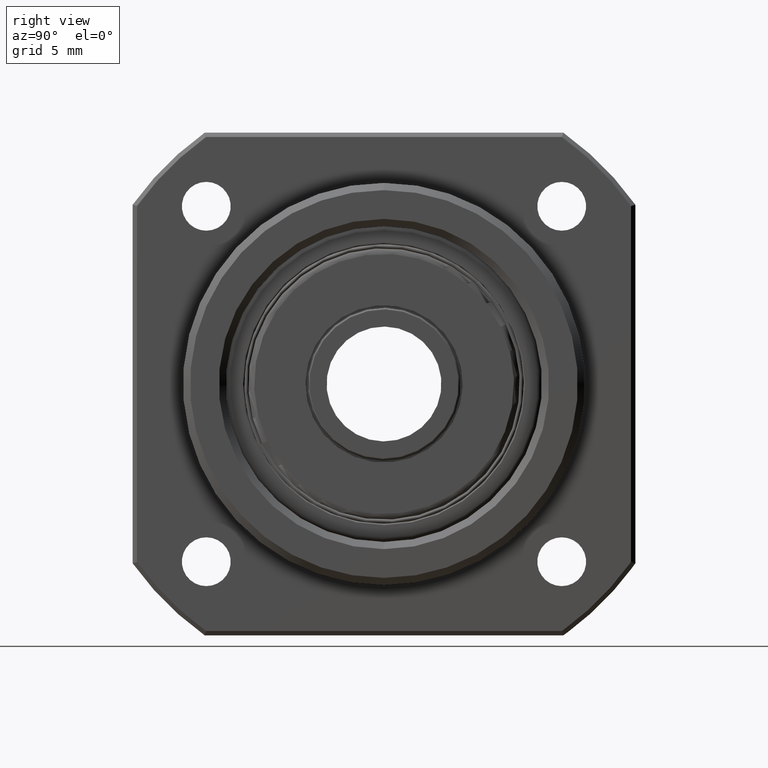
[diagram: clean part render]
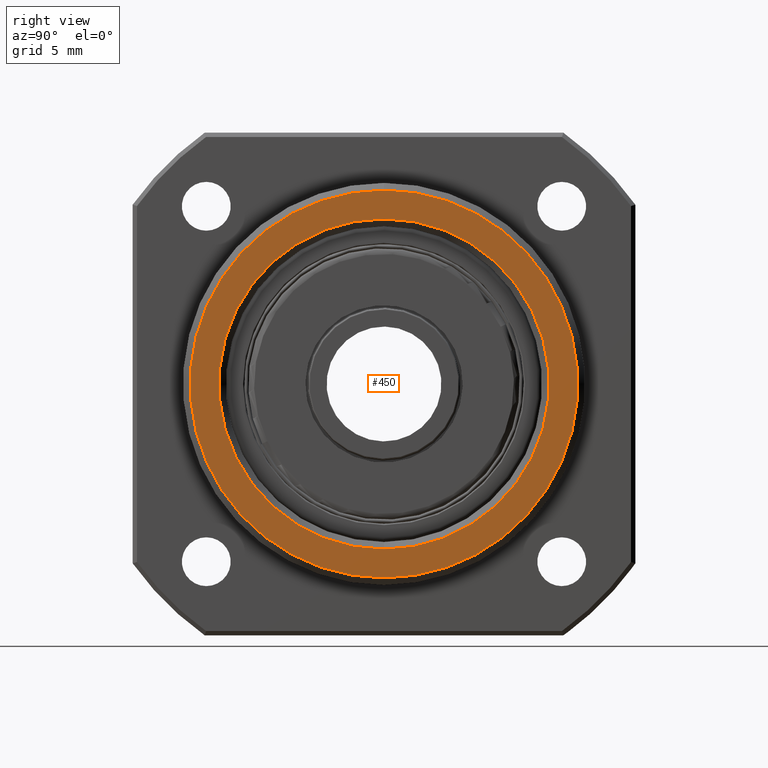
[diagram: same view with one face highlighted and labeled with its STEP entity id]
A machine part, right view. The second image highlights one B-rep face of the part: STEP entity #450.
In plain terms, the highlighted planar face has unit normal (-1, 0, -0).
Its self-contained STEP definition (entity closure, byte-faithful):
#61 = VERTEX_POINT ( 'NONE', #820 ) ;
#62 = EDGE_CURVE ( 'NONE', #105, #61, #819, .T. ) ;
#77 = VERTEX_POINT ( 'NONE', #703 ) ;
#105 = VERTEX_POINT ( 'NONE', #978 ) ;
#150 = VERTEX_POINT ( 'NONE', #1063 ) ;
#158 = EDGE_CURVE ( 'NONE', #150, #77, #950, .T. ) ;
#430 = EDGE_LOOP ( 'NONE', ( #431, #452 ) ) ;
#431 = ORIENTED_EDGE ( 'NONE', *, *, #451, .T. ) ;
#442 = ORIENTED_EDGE ( 'NONE', *, *, #158, .T. ) ;
#443 = ORIENTED_EDGE ( 'NONE', *, *, #444, .T. ) ;
#444 = EDGE_CURVE ( 'NONE', #77, #150, #4348, .T. ) ;
#450 = ADVANCED_FACE ( 'NONE', ( #4278, #4277 ), #4276, .F. ) ;
#451 = EDGE_CURVE ( 'NONE', #61, #105, #4270, .T. ) ;
#452 = ORIENTED_EDGE ( 'NONE', *, *, #62, .T. ) ;
#453 = EDGE_LOOP ( 'NONE', ( #442, #443 ) ) ;
#703 = CARTESIAN_POINT ( 'NONE',  ( 12.00000000000000000, 1.408297306895734600E-015, 11.50000000000000700 ) ) ;
#815 = DIRECTION ( 'NONE',  ( 0.0000000000000000000, 0.0000000000000000000, 1.000000000000000000 ) ) ;
#816 = DIRECTION ( 'NONE',  ( 1.000000000000000000, 0.0000000000000000000, 0.0000000000000000000 ) ) ;
#817 = CARTESIAN_POINT ( 'NONE',  ( 12.00000000000000000, 0.0000000000000000000, 0.0000000000000000000 ) ) ;
#818 = AXIS2_PLACEMENT_3D ( 'NONE', #817, #816, #815 ) ;
#819 = CIRCLE ( 'NONE', #818, 13.49999999999999100 ) ;
#820 = CARTESIAN_POINT ( 'NONE',  ( 12.00000000000000000, 0.0000000000000000000, 13.49999999999999100 ) ) ;
#946 = DIRECTION ( 'NONE',  ( 0.0000000000000000000, 0.0000000000000000000, 1.000000000000000000 ) ) ;
#947 = DIRECTION ( 'NONE',  ( -1.000000000000000000, -0.0000000000000000000, -0.0000000000000000000 ) ) ;
#948 = CARTESIAN_POINT ( 'NONE',  ( 12.00000000000000000, 0.0000000000000000000, 0.0000000000000000000 ) ) ;
#949 = AXIS2_PLACEMENT_3D ( 'NONE', #948, #947, #946 ) ;
#950 = CIRCLE ( 'NONE', #949, 11.50000000000000700 ) ;
#978 = CARTESIAN_POINT ( 'NONE',  ( 12.00000000000000000, 1.683833736505768300E-015, -13.49999999999999100 ) ) ;
#1063 = CARTESIAN_POINT ( 'NONE',  ( 12.00000000000000000, 0.0000000000000000000, -11.50000000000000700 ) ) ;
#4267 = DIRECTION ( 'NONE',  ( 0.0000000000000000000, 0.0000000000000000000, 1.000000000000000000 ) ) ;
#4268 = DIRECTION ( 'NONE',  ( 1.000000000000000000, 0.0000000000000000000, 0.0000000000000000000 ) ) ;
#4269 = AXIS2_PLACEMENT_3D ( 'NONE', #4274, #4268, #4267 ) ;
#4270 = CIRCLE ( 'NONE', #4269, 13.49999999999999100 ) ;
#4271 = DIRECTION ( 'NONE',  ( -0.0000000000000000000, 0.0000000000000000000, 1.000000000000000000 ) ) ;
#4272 = DIRECTION ( 'NONE',  ( -1.000000000000000000, 0.0000000000000000000, -0.0000000000000000000 ) ) ;
#4273 = AXIS2_PLACEMENT_3D ( 'NONE', #4275, #4272, #4271 ) ;
#4274 = CARTESIAN_POINT ( 'NONE',  ( 12.00000000000000000, 0.0000000000000000000, 0.0000000000000000000 ) ) ;
#4275 = CARTESIAN_POINT ( 'NONE',  ( 12.00000000000000000, 14.00000000000000000, 0.0000000000000000000 ) ) ;
#4276 = PLANE ( 'NONE',  #4273 ) ;
#4277 = FACE_BOUND ( 'NONE', #453, .T. ) ;
#4278 = FACE_OUTER_BOUND ( 'NONE', #430, .T. ) ;
#4344 = DIRECTION ( 'NONE',  ( 0.0000000000000000000, 0.0000000000000000000, 1.000000000000000000 ) ) ;
#4345 = DIRECTION ( 'NONE',  ( -1.000000000000000000, -0.0000000000000000000, -0.0000000000000000000 ) ) ;
#4346 = CARTESIAN_POINT ( 'NONE',  ( 12.00000000000000000, 0.0000000000000000000, 0.0000000000000000000 ) ) ;
#4347 = AXIS2_PLACEMENT_3D ( 'NONE', #4346, #4345, #4344 ) ;
#4348 = CIRCLE ( 'NONE', #4347, 11.50000000000000700 ) ;